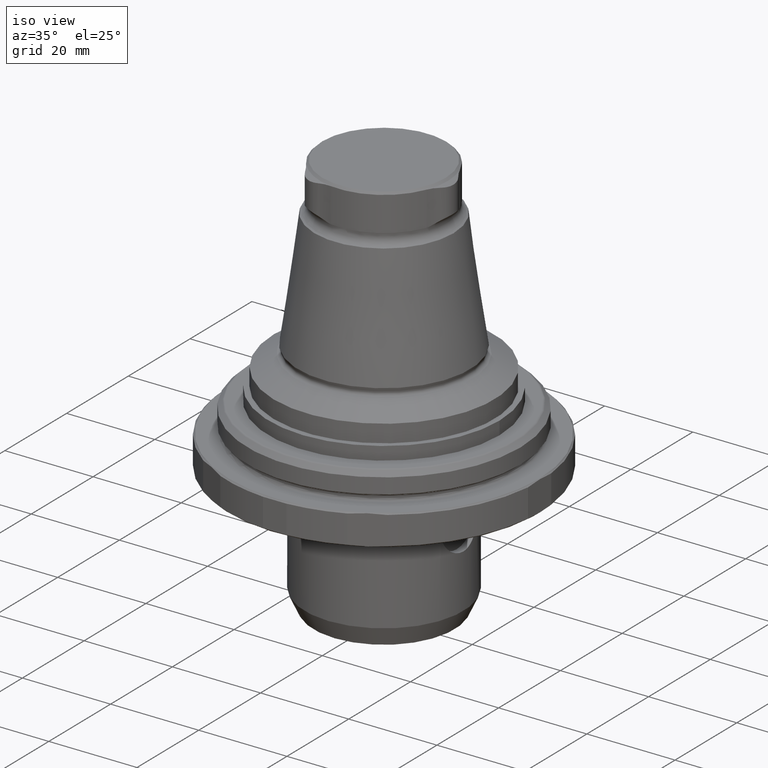
[diagram: clean part render]
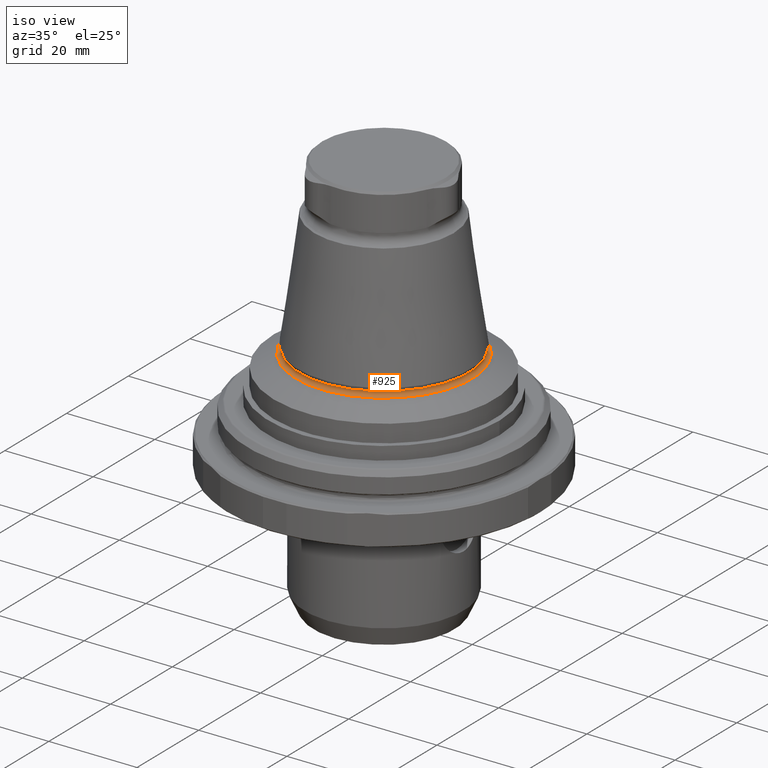
[diagram: same view with one face highlighted and labeled with its STEP entity id]
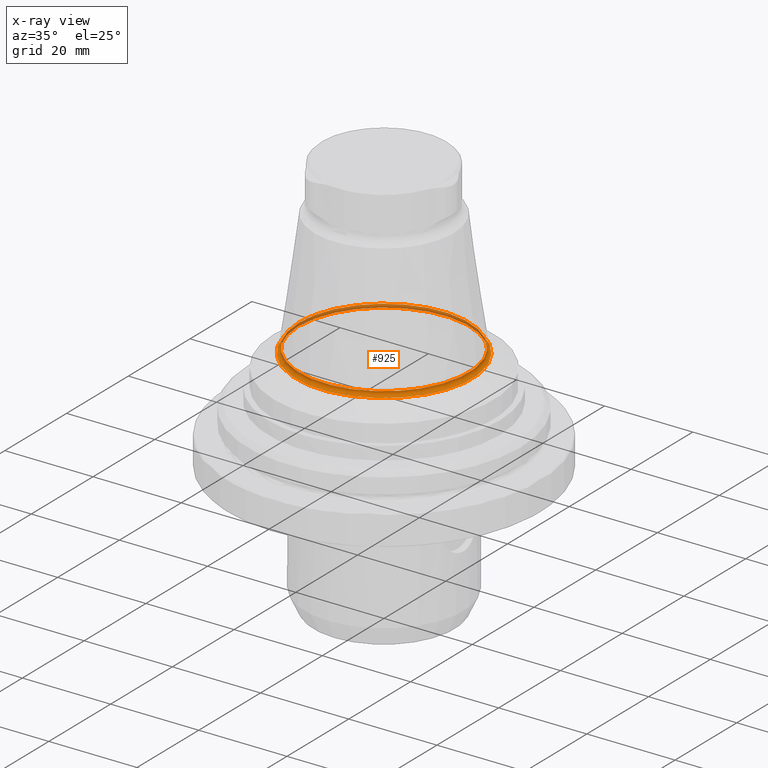
[diagram: x-ray of the same camera — body ghosted, the highlighted face saturated]
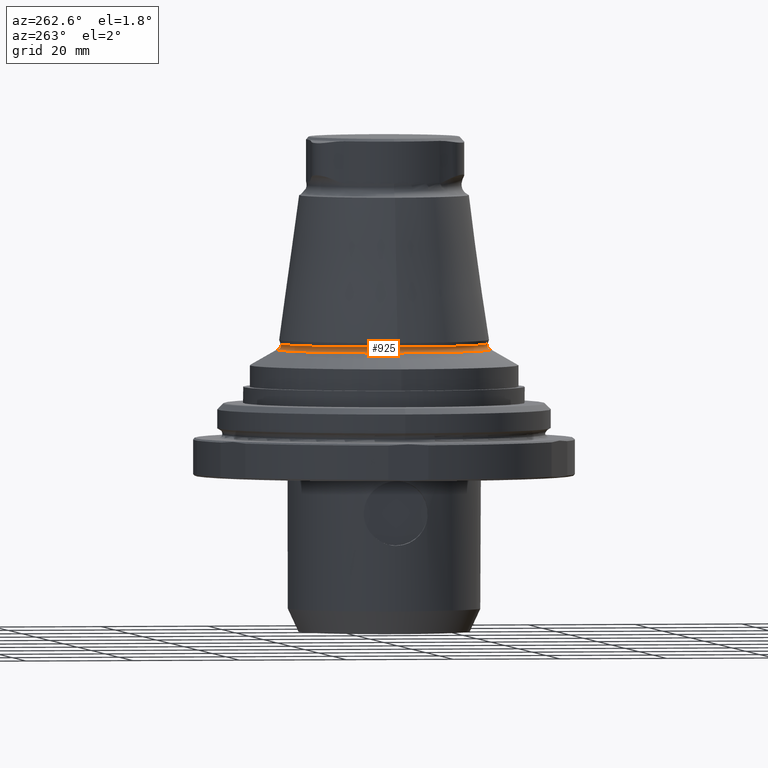
[diagram: same view with one face highlighted and labeled with its STEP entity id]
A machine part, iso view. The second image highlights one B-rep face of the part: STEP entity #925.
The next image is the same camera in x-ray: the body ghosted, the highlighted face saturated — about 29% of this face is hidden behind the body in this view.
A second angle (auxiliary view) of the same face is appended — the face is thin or edge-on in the first view.
In plain terms, the highlighted toroidal blend (fillet) surface has major radius 20 mm and minor (blend) radius 0.8 mm.
Its self-contained STEP definition (entity closure, byte-faithful):
#21=TOROIDAL_SURFACE('',#1026,20.,0.8);
#135=CIRCLE('',#1025,19.2482459033713);
#136=CIRCLE('',#1027,19.9770526580503);
#284=ORIENTED_EDGE('',*,*,#478,.T.);
#285=ORIENTED_EDGE('',*,*,#479,.F.);
#478=EDGE_CURVE('',#585,#585,#135,.T.);
#479=EDGE_CURVE('',#586,#586,#136,.T.);
#585=VERTEX_POINT('',#1622);
#586=VERTEX_POINT('',#1625);
#716=EDGE_LOOP('',(#284));
#717=EDGE_LOOP('',(#285));
#812=FACE_BOUND('',#716,.T.);
#813=FACE_BOUND('',#717,.T.);
#925=ADVANCED_FACE('',(#812,#813),#21,.F.);
#1025=AXIS2_PLACEMENT_3D('',#1621,#1209,#1210);
#1026=AXIS2_PLACEMENT_3D('',#1623,#1211,#1212);
#1027=AXIS2_PLACEMENT_3D('',#1624,#1213,#1214);
#1209=DIRECTION('',(-4.38328612912168E-16,-8.51929322185263E-24,-1.));
#1210=DIRECTION('',(-1.,9.77164313006873E-16,4.38328610599545E-16));
#1211=DIRECTION('',(-4.38328612912168E-16,-8.51929322185263E-24,-1.));
#1212=DIRECTION('',(-1.,9.77164313006873E-16,4.38328610599545E-16));
#1213=DIRECTION('',(-4.38328612912168E-16,-8.51929322185263E-24,-1.));
#1214=DIRECTION('',(-1.,9.77164313006873E-16,4.38328610599545E-16));
#1621=CARTESIAN_POINT('',(-8.05431646594814E-14,-9.81645350279988E-14,16.4721762342285));
#1622=CARTESIAN_POINT('',(-19.2482459033714,-7.93558360432436E-14,16.4721762342285));
#1623=CARTESIAN_POINT('',(-8.14268490836323E-14,-9.81645350303298E-14,16.198560119568));
#1624=CARTESIAN_POINT('',(-8.10136170325717E-14,-9.81645350371424E-14,15.398889300107));
#1625=CARTESIAN_POINT('',(-19.9770526580504,-7.86436721006366E-14,15.398889300107));